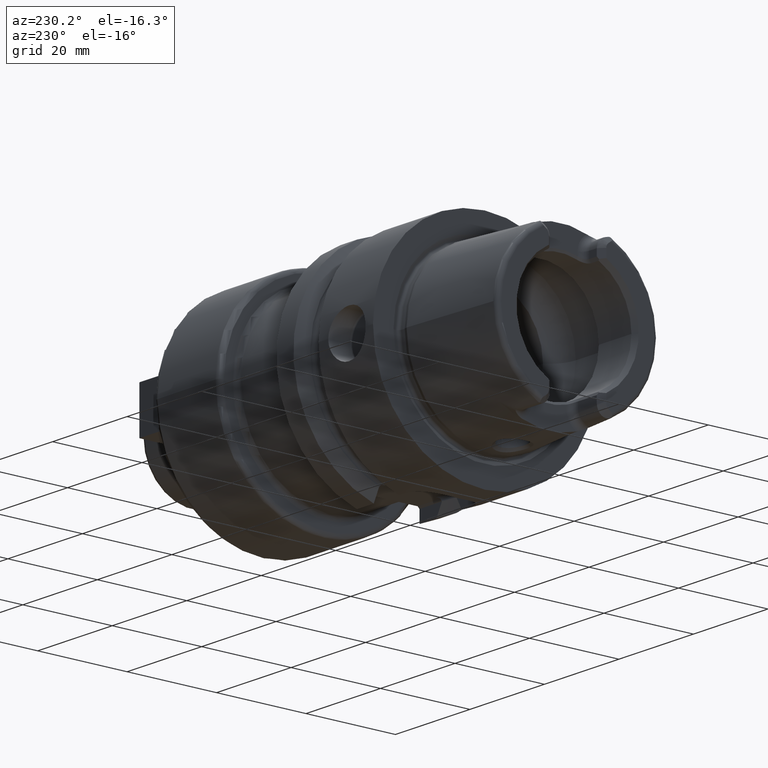
[diagram: clean part render]
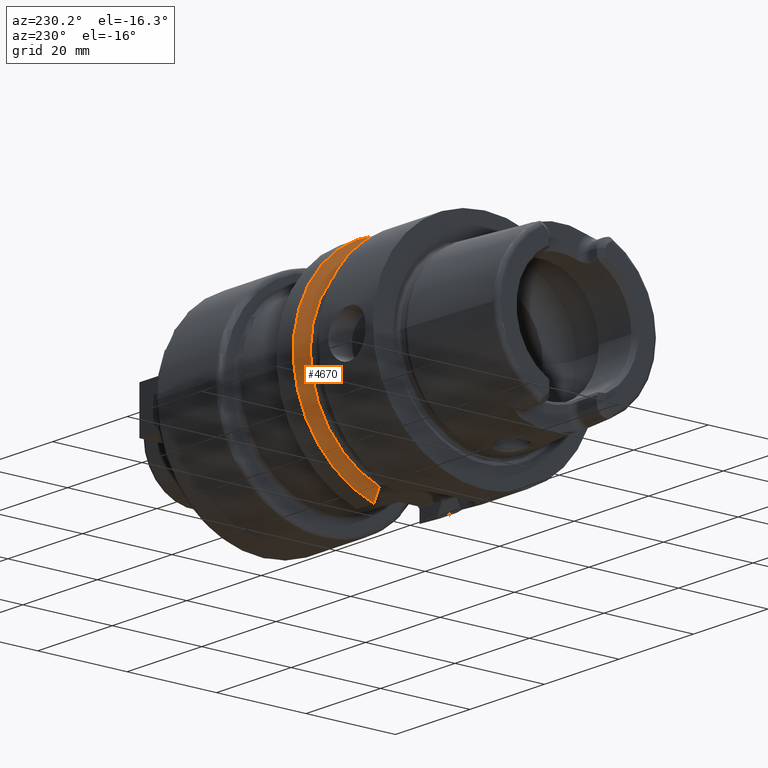
[diagram: same view with one face highlighted and labeled with its STEP entity id]
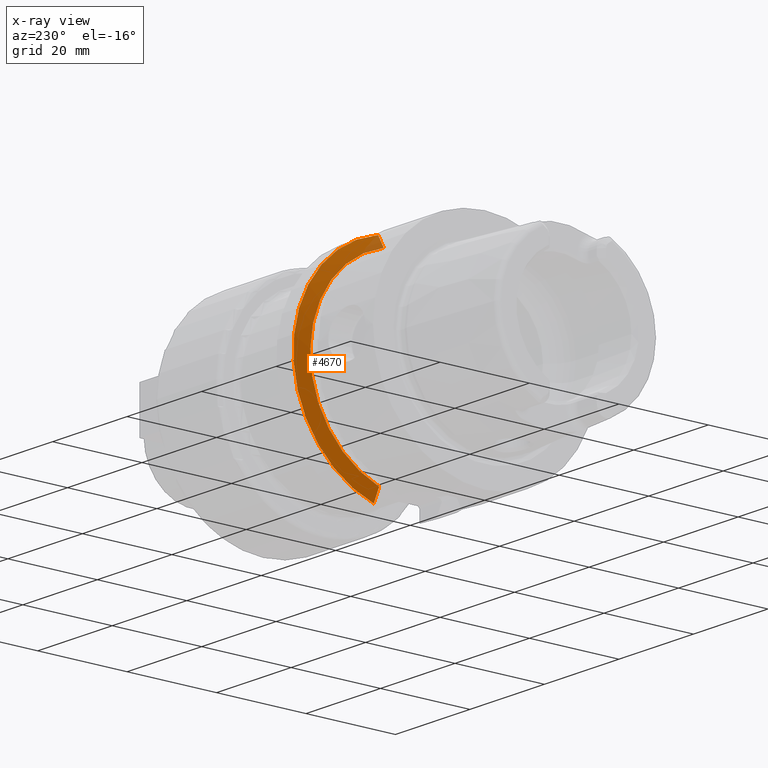
[diagram: x-ray of the same camera — body ghosted, the highlighted face saturated]
A machine part, auxiliary view. The second image highlights one B-rep face of the part: STEP entity #4670.
The next image is the same camera in x-ray: the body ghosted, the highlighted face saturated — about 3% of this face is hidden behind the body in this view.
In plain terms, the highlighted conical surface has half-angle 60 deg.
Its self-contained STEP definition (entity closure, byte-faithful):
#1037=CARTESIAN_POINT('',(2.139193283149E1,0.E0,0.E0));
#1038=DIRECTION('',(-1.E0,0.E0,0.E0));
#1039=DIRECTION('',(0.E0,2.407E-1,9.705995621264E-1));
#1040=AXIS2_PLACEMENT_3D('',#1037,#1038,#1039);
#1148=CARTESIAN_POINT('',(1.99125E1,0.E0,0.E0));
#1149=DIRECTION('',(-1.E0,0.E0,0.E0));
#1150=DIRECTION('',(0.E0,2.681888512389E-1,9.633663581790E-1));
#1151=AXIS2_PLACEMENT_3D('',#1148,#1149,#1150);
#1654=CARTESIAN_POINT('',(1.99125E1,6.0175E0,2.161557810313E1));
#1655=CARTESIAN_POINT('',(2.006894208185E1,6.0175E0,2.189684766575E1));
#1656=CARTESIAN_POINT('',(2.038712265933E1,6.0175E0,2.246811923109E1));
#1657=CARTESIAN_POINT('',(2.088008533564E1,6.0175E0,2.335091062741E1));
#1658=CARTESIAN_POINT('',(2.121953726577E1,6.0175E0,2.395734634398E1));
#1659=CARTESIAN_POINT('',(2.139193283149E1,6.0175E0,2.426498905316E1));
#1791=CARTESIAN_POINT('',(2.139193283149E1,7.0175E0,-2.399488890889E1));
#1792=CARTESIAN_POINT('',(2.121882969967E1,7.0175E0,-2.368250632149E1));
#1793=CARTESIAN_POINT('',(2.087843478851E1,7.0175E0,-2.306726652731E1));
#1794=CARTESIAN_POINT('',(2.038551824017E1,7.0175E0,-2.217337894395E1));
#1795=CARTESIAN_POINT('',(2.006825483737E1,7.0175E0,-2.159595049916E1));
#1796=CARTESIAN_POINT('',(1.99125E1,7.0175E0,-2.131192663117E1));
#3184=CARTESIAN_POINT('',(1.99125E1,6.0175E0,2.161557810313E1));
#3185=VERTEX_POINT('',#3184);
#3186=VERTEX_POINT('',#1659);
#3193=CARTESIAN_POINT('',(1.99125E1,7.0175E0,-2.131192663117E1));
#3195=VERTEX_POINT('',#3193);
#3196=VERTEX_POINT('',#1791);
#4656=CARTESIAN_POINT('',(2.065221641574E1,0.E0,0.E0));
#4657=DIRECTION('',(1.E0,0.E0,0.E0));
#4658=DIRECTION('',(0.E0,-1.E0,0.E0));
#4659=AXIS2_PLACEMENT_3D('',#4656,#4657,#4658);
#4660=CONICAL_SURFACE('',#4659,2.371877358474E1,6.E1);
#4662=ORIENTED_EDGE('',*,*,#4661,.T.);
#4664=ORIENTED_EDGE('',*,*,#4663,.F.);
#4665=ORIENTED_EDGE('',*,*,#4617,.F.);
#4667=ORIENTED_EDGE('',*,*,#4666,.F.);
#4668=EDGE_LOOP('',(#4662,#4664,#4665,#4667));
#4669=FACE_OUTER_BOUND('',#4668,.F.);
#4670=ADVANCED_FACE('',(#4669),#4660,.T.);
#1041=CIRCLE('',#1040,2.5E1);
#1152=CIRCLE('',#1151,2.243754716948E1);
#1660=B_SPLINE_CURVE_WITH_KNOTS('',3,(#1654,#1655,#1656,#1657,#1658,#1659),
.UNSPECIFIED.,.F.,.F.,(4,1,1,4),(0.E0,3.333333333333E-1,6.666666666667E-1,1.E0),
.UNSPECIFIED.);
#1797=B_SPLINE_CURVE_WITH_KNOTS('',3,(#1791,#1792,#1793,#1794,#1795,#1796),
.UNSPECIFIED.,.F.,.F.,(4,1,1,4),(0.E0,3.333333333333E-1,6.666666666667E-1,1.E0),
.UNSPECIFIED.);
#4617=EDGE_CURVE('',#3186,#3196,#1041,.T.);
#4661=EDGE_CURVE('',#3185,#3195,#1152,.T.);
#4663=EDGE_CURVE('',#3196,#3195,#1797,.T.);
#4666=EDGE_CURVE('',#3185,#3186,#1660,.T.);